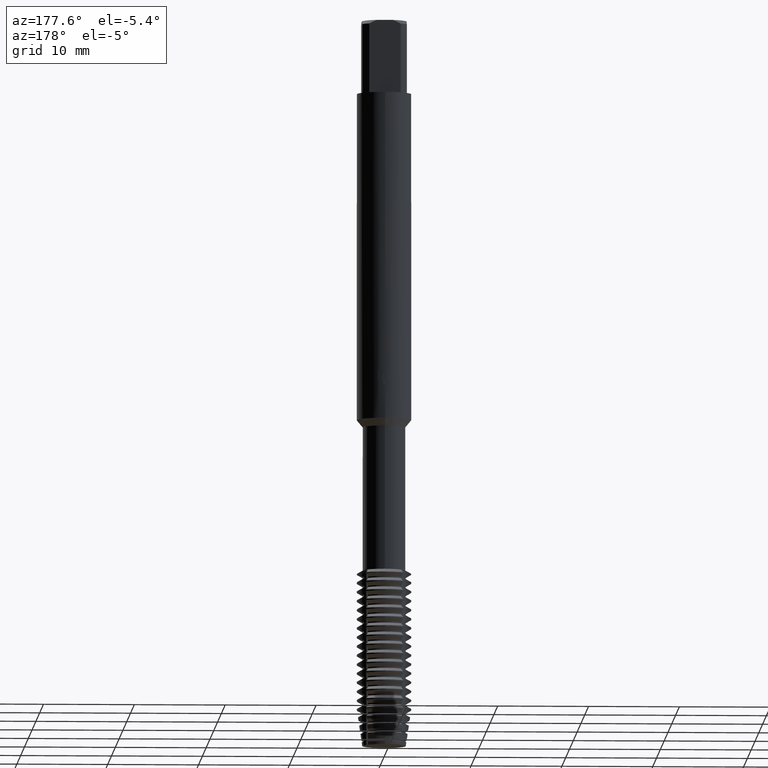
[diagram: clean part render]
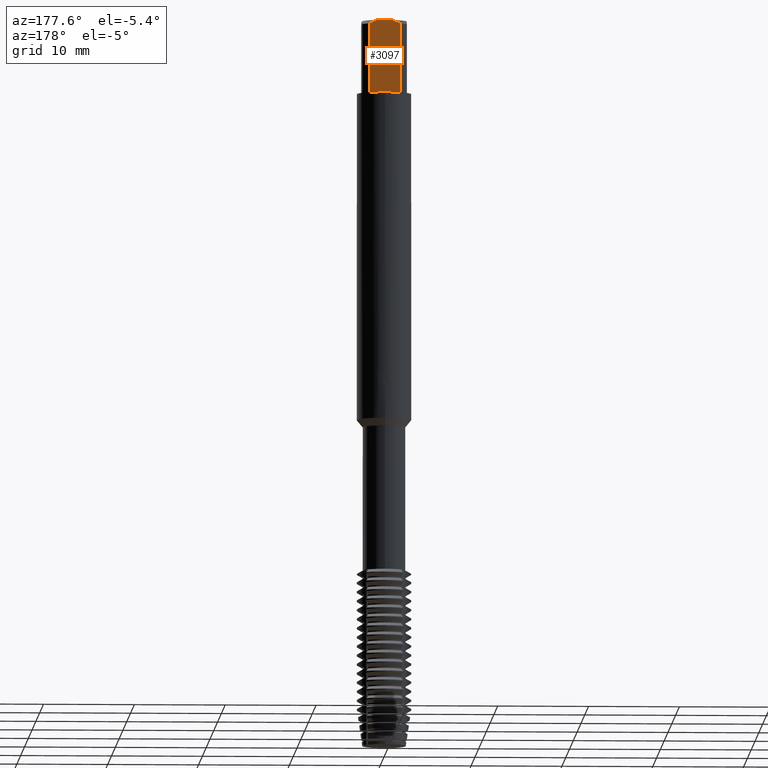
[diagram: same view with one face highlighted and labeled with its STEP entity id]
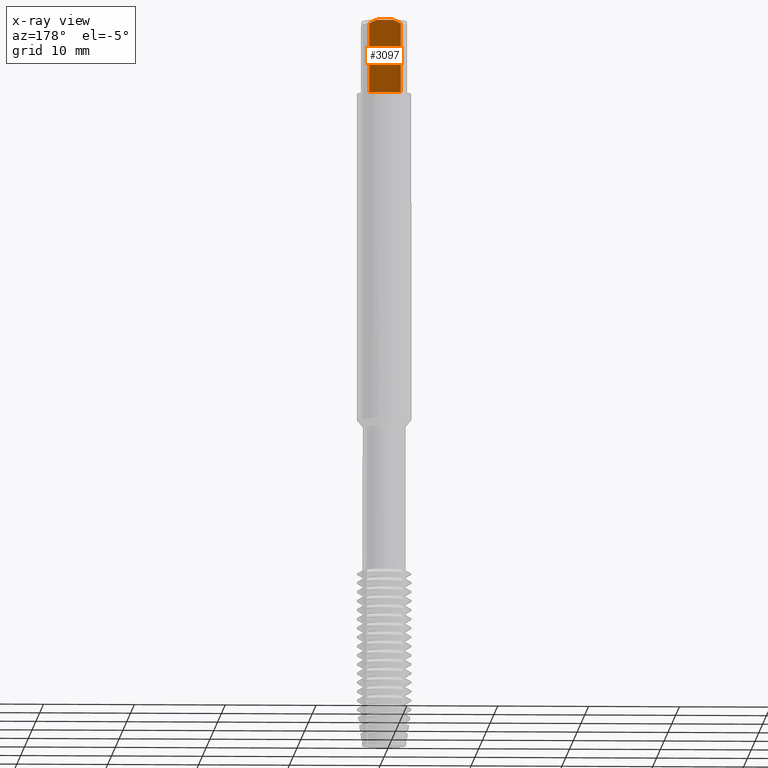
[diagram: x-ray of the same camera — body ghosted, the highlighted face saturated]
A machine part, auxiliary view. The second image highlights one B-rep face of the part: STEP entity #3097.
The next image is the same camera in x-ray: the body ghosted, the highlighted face saturated — about 0% of this face is hidden behind the body in this view.
In plain terms, the highlighted planar face has unit normal (0, 1, 0).
Its self-contained STEP definition (entity closure, byte-faithful):
#3059=VERTEX_POINT('',#7891);
#3097=ADVANCED_FACE('',(#7933),#7934,.T.);
#3285=EDGE_CURVE('',#3541,#7043,#8142,.T.);
#3435=EDGE_CURVE('',#4421,#5827,#8303,.T.);
#3541=VERTEX_POINT('',#8418);
#4421=VERTEX_POINT('',#9381);
#4507=VERTEX_POINT('',#9475);
#4981=EDGE_CURVE('',#7043,#4421,#9997,.T.);
#4997=EDGE_CURVE('',#4507,#3059,#10014,.T.);
#5827=VERTEX_POINT('',#10921);
#6289=EDGE_CURVE('',#5827,#4507,#11421,.T.);
#7043=VERTEX_POINT('',#12228);
#7101=EDGE_CURVE('',#3059,#3541,#12291,.T.);
#7891=CARTESIAN_POINT('',(0.87034475927646,2.45,0.0));
#7933=FACE_OUTER_BOUND('',#13711,.T.);
#7934=PLANE('',#13712);
#8142=(B_SPLINE_CURVE(2,(#14037,#14038,#14039),.UNSPECIFIED.,.F.,.F.)B_SPLINE_CURVE_WITH_KNOTS((3,3),(0.0,0.950549192151453),.UNSPECIFIED.)RATIONAL_B_SPLINE_CURVE((1.0,1.01203284912645,1.0))BOUNDED_CURVE()REPRESENTATION_ITEM('')GEOMETRIC_REPRESENTATION_ITEM()CURVE());
#8303=LINE('',#14326,#14327);
#8418=CARTESIAN_POINT('',(-0.87034475927646,2.45,0.0));
#9381=CARTESIAN_POINT('',(-1.73132896931808,2.45,-8.0));
#9475=CARTESIAN_POINT('',(1.73132896931808,2.45,-0.399999999999999));
#9997=LINE('',#17346,#17347);
#10014=(B_SPLINE_CURVE(2,(#17378,#17379,#17380),.UNSPECIFIED.,.F.,.F.)B_SPLINE_CURVE_WITH_KNOTS((3,3),(0.0,0.950549192151453),.UNSPECIFIED.)RATIONAL_B_SPLINE_CURVE((1.0,1.01203284912645,1.0))BOUNDED_CURVE()REPRESENTATION_ITEM('')GEOMETRIC_REPRESENTATION_ITEM()CURVE());
#10921=CARTESIAN_POINT('',(1.73132896931808,2.45,-8.0));
#11421=LINE('',#19862,#19863);
#12228=CARTESIAN_POINT('',(-1.73132896931808,2.45,-0.399999999999999));
#12291=LINE('',#21416,#21417);
#13711=EDGE_LOOP('',(#22341,#22342,#22343,#22344,#22345,#22346));
#13712=AXIS2_PLACEMENT_3D('',#22347,#22348,#22349);
#14037=CARTESIAN_POINT('',(-0.870344759276449,2.45,1.11022302462516E-016));
#14038=CARTESIAN_POINT('',(-1.27008742822434,2.45,-0.133813052683839));
#14039=CARTESIAN_POINT('',(-1.73132896931807,2.45,-0.399999999999998));
#14326=CARTESIAN_POINT('',(0.0,2.45,-8.0));
#14327=VECTOR('',#22739,1.0);
#17346=CARTESIAN_POINT('',(-1.73132896931808,2.45,-4.2));
#17347=VECTOR('',#24890,1.0);
#17378=CARTESIAN_POINT('',(1.73132896931807,2.45,-0.399999999999998));
#17379=CARTESIAN_POINT('',(1.27008742822434,2.45,-0.133813052683839));
#17380=CARTESIAN_POINT('',(0.870344759276449,2.45,1.11022302462516E-016));
#19862=CARTESIAN_POINT('',(1.73132896931808,2.45,-4.2));
#19863=VECTOR('',#26548,1.0);
#21416=CARTESIAN_POINT('',(0.0,2.45,0.0));
#21417=VECTOR('',#27373,1.0);
#22341=ORIENTED_EDGE('',*,*,#4981,.F.);
#22342=ORIENTED_EDGE('',*,*,#3285,.F.);
#22343=ORIENTED_EDGE('',*,*,#7101,.F.);
#22344=ORIENTED_EDGE('',*,*,#4997,.F.);
#22345=ORIENTED_EDGE('',*,*,#6289,.F.);
#22346=ORIENTED_EDGE('',*,*,#3435,.F.);
#22347=CARTESIAN_POINT('',(0.0,2.45,-3.5));
#22348=DIRECTION('',(0.0,1.0,0.0));
#22349=DIRECTION('',(0.0,0.0,-1.0));
#22739=DIRECTION('',(1.0,0.0,0.0));
#24890=DIRECTION('',(0.0,0.0,-1.0));
#26548=DIRECTION('',(-0.0,-0.0,1.0));
#27373=DIRECTION('',(-1.0,0.0,0.0));